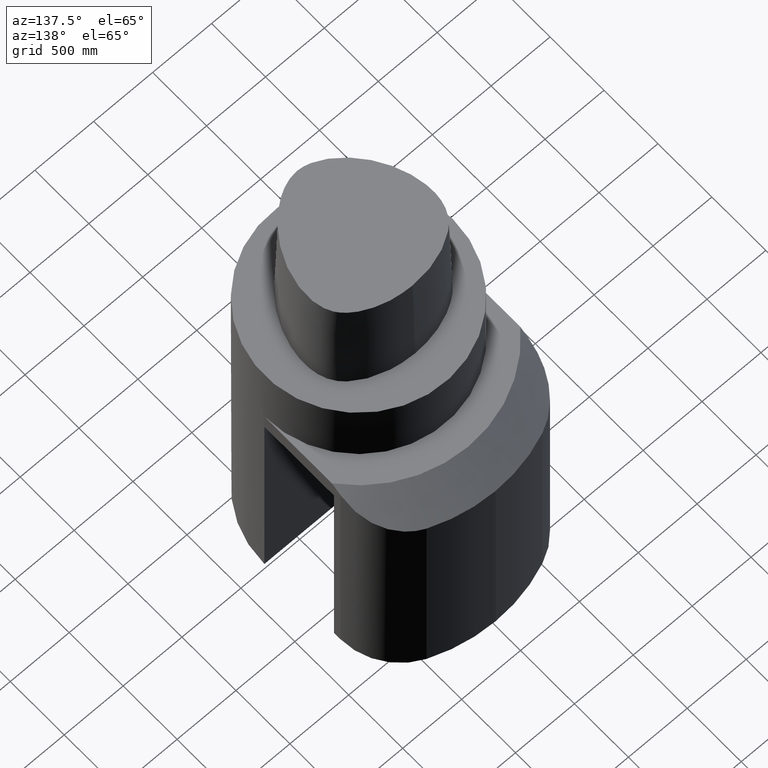
[diagram: clean part render]
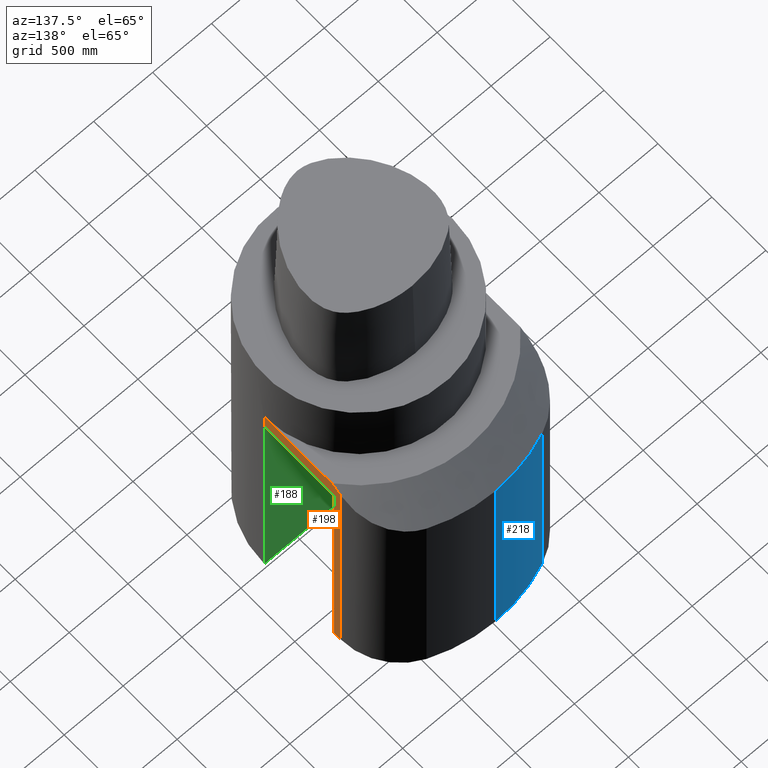
[diagram: same view with three faces highlighted in distinct colors, each labeled with its STEP entity id]
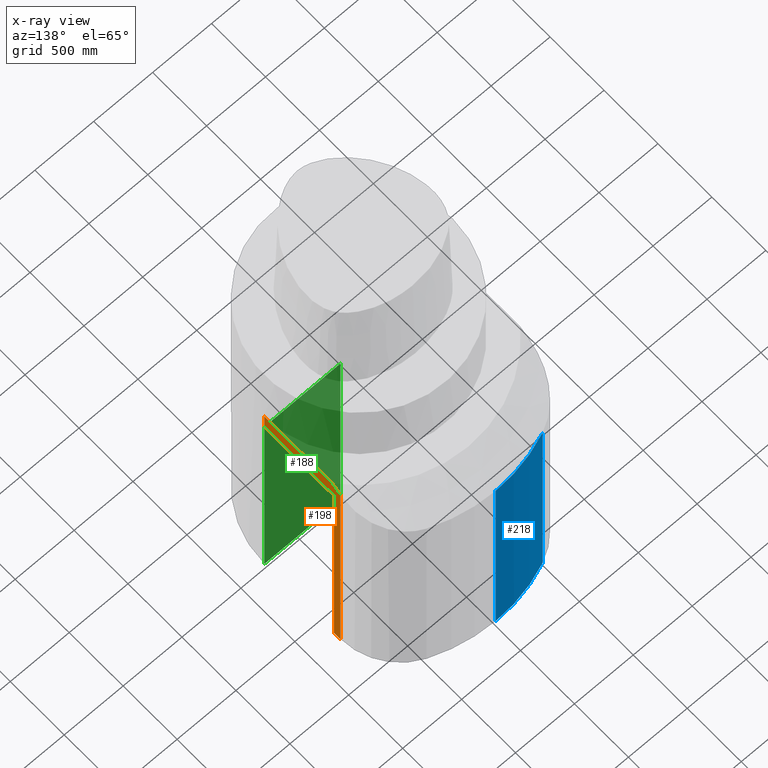
[diagram: x-ray of the same camera — body ghosted, the three highlighted faces saturated]
A machine part, auxiliary view with three faces highlighted in distinct colors.
The next image is the same camera in x-ray (body ghosted, the three faces saturated) — at least one of them is partly hidden behind the body in this view.
Their STEP definitions:

[orange] entity #198 — the highlighted planar face has unit normal (-1, 0, -0).
#125=EDGE_CURVE('Unnamed[1]',#309,#303,#310,.T.);
#170=EDGE_CURVE('Unnamed[1]',#309,#369,#370,.T.);
#176=EDGE_CURVE('Unnamed[1]',#369,#317,#376,.T.);
#198=ADVANCED_FACE('Unnamed[1]',(#404),#405,.F.);
#207=EDGE_CURVE('Unnamed[1]',#303,#398,#416,.T.);
#215=EDGE_CURVE('Unnamed[1]',#426,#407,#427,.T.);
#220=EDGE_CURVE('Unnamed[1]',#317,#407,#433,.T.);
#230=EDGE_CURVE('Unnamed[1]',#426,#398,#443,.T.);
#303=VERTEX_POINT('',#706);
#309=VERTEX_POINT('',#716);
#310=LINE('',#717,#718);
#317=VERTEX_POINT('',#727);
#369=VERTEX_POINT('',#835);
#370=LINE('',#836,#837);
#376=LINE('',#847,#848);
#398=VERTEX_POINT('',#895);
#404=FACE_OUTER_BOUND('',#904,.T.);
#405=PLANE('',#905);
#407=VERTEX_POINT('',#908);
#416=LINE('',#938,#939);
#426=VERTEX_POINT('',#952);
#427=LINE('',#953,#954);
#433=(B_SPLINE_CURVE(2,(#963,#964,#965),.UNSPECIFIED.,.F.,.F.)B_SPLINE_CURVE_WITH_KNOTS((3,3),(0.0,17.3552936339432),.UNSPECIFIED.)RATIONAL_B_SPLINE_CURVE((1.0,1.01264270198955,1.0))BOUNDED_CURVE()REPRESENTATION_ITEM('')GEOMETRIC_REPRESENTATION_ITEM()CURVE());
#443=LINE('',#995,#996);
#706=CARTESIAN_POINT('',(31.5000000000001,25.4,-29.9999999999993));
#716=CARTESIAN_POINT('',(31.5,-7.62342632469223E-015,-29.9999999999993));
#717=CARTESIAN_POINT('',(31.5,6.92752358954325,-29.9999999999993));
#718=VECTOR('',#1062,1.0);
#727=CARTESIAN_POINT('',(31.5000000000001,24.6525860712451,-24.0));
#835=CARTESIAN_POINT('',(31.5,6.20914671873299E-014,-24.0));
#836=CARTESIAN_POINT('',(31.5,4.98449991958564E-014,-224.0));
#837=VECTOR('',#1123,1.0);
#847=CARTESIAN_POINT('',(31.5,6.92752358954312,-24.0));
#848=VECTOR('',#1128,1.0);
#895=CARTESIAN_POINT('',(31.5000000000001,25.4,-109.999999999992));
#904=EDGE_LOOP('',(#1161,#1162,#1163,#1164,#1165,#1166,#1167));
#905=AXIS2_PLACEMENT_3D('',#1168,#1169,#1170);
#908=CARTESIAN_POINT('',(31.5000000000001,27.710094358173,-25.9535377452094));
#938=CARTESIAN_POINT('',(31.5000000000001,25.4,-224.0));
#939=VECTOR('',#1180,1.0);
#952=CARTESIAN_POINT('',(31.5000000000001,27.710094358173,-109.999999999992));
#953=CARTESIAN_POINT('',(31.5000000000001,27.710094358173,-224.0));
#954=VECTOR('',#1197,1.0);
#963=CARTESIAN_POINT('',(31.5000000000001,24.6525860712451,-24.0));
#964=CARTESIAN_POINT('',(31.5000000000001,30.9535507643402,-27.8833768607101));
#965=CARTESIAN_POINT('',(31.5000000000002,38.8297566307085,-33.9999999999993));
#995=CARTESIAN_POINT('',(31.5,6.92752358954314,-109.999999999992));
#996=VECTOR('',#1215,1.0);
#1062=DIRECTION('',(4.54284006420425E-015,1.0,-6.12323399573671E-017));
#1123=DIRECTION('',(-1.22464679914735E-016,6.12323399573677E-017,1.0));
#1128=DIRECTION('',(4.54284006420425E-015,1.0,-6.12323399573671E-017));
#1161=ORIENTED_EDGE('',*,*,#125,.T.);
#1162=ORIENTED_EDGE('',*,*,#207,.T.);
#1163=ORIENTED_EDGE('',*,*,#230,.F.);
#1164=ORIENTED_EDGE('',*,*,#215,.T.);
#1165=ORIENTED_EDGE('',*,*,#220,.F.);
#1166=ORIENTED_EDGE('',*,*,#176,.F.);
#1167=ORIENTED_EDGE('',*,*,#170,.F.);
#1168=CARTESIAN_POINT('',(31.5000000000001,13.8550471790865,-224.0));
#1169=DIRECTION('',(-1.0,4.54284006420425E-015,-1.22464679914736E-016));
#1170=DIRECTION('',(-4.54284006420425E-015,-1.0,6.12323399573671E-017));
#1180=DIRECTION('',(1.22464679914735E-016,-6.12323399573677E-017,-1.0));
#1197=DIRECTION('',(-1.22464679914735E-016,6.12323399573677E-017,1.0));
#1215=DIRECTION('',(-4.54284006420425E-015,-1.0,6.12323399508057E-017));

[blue] entity #218 — the highlighted cylindrical surface (partial cylindrical patch) has radius 1270 mm, axis along (-0, 0, 1).
#105=EDGE_CURVE('Unnamed[1]',#280,#281,#282,.T.);
#123=EDGE_CURVE('Unnamed[1]',#306,#281,#307,.T.);
#164=EDGE_CURVE('Unnamed[1]',#306,#337,#363,.T.);
#182=EDGE_CURVE('Unnamed[1]',#337,#280,#383,.T.);
#218=ADVANCED_FACE('Unnamed[1]',(#430),#431,.T.);
#280=VERTEX_POINT('',#593);
#281=VERTEX_POINT('',#594);
#282=B_SPLINE_CURVE_WITH_KNOTS('',3,(#595,#596,#597,#598,#599,#600,#601,#602,#603,#604,#605,#606,#607,#608),.UNSPECIFIED.,.F.,.F.,(4,2,2,2,2,2,4),(221.307613234184,226.016355747649,230.724780710334,235.433205673018,240.141630635702,244.850055598386,249.55848056107),.UNSPECIFIED.);
#306=VERTEX_POINT('',#711);
#307=LINE('',#712,#713);
#337=VERTEX_POINT('',#771);
#363=CIRCLE('',#824,50.0);
#383=LINE('',#875,#876);
#430=FACE_OUTER_BOUND('',#958,.T.);
#431=CYLINDRICAL_SURFACE('',#959,50.0);
#593=CARTESIAN_POINT('',(0.00215974507375456,49.9999999533556,-33.9999999999993));
#594=CARTESIAN_POINT('',(-19.169546318746,46.1775147707605,-33.9983437372701));
#595=CARTESIAN_POINT('',(4.77367907535413,49.7720123064386,-34.000412207767));
#596=CARTESIAN_POINT('',(3.16605859430777,49.9260611345788,-34.0002733272821));
#597=CARTESIAN_POINT('',(1.5695808261077,50.0001354088224,-34.000135408821));
#598=CARTESIAN_POINT('',(-1.56947497584813,49.9998642271643,-33.999864227163));
#599=CARTESIAN_POINT('',(-3.16583398429016,49.9255241333956,-33.9997263178512));
#600=CARTESIAN_POINT('',(-6.38081301651384,49.6169115926764,-33.9994485749278));
#601=CARTESIAN_POINT('',(-7.999434114848,49.382650340007,-33.9993087412234));
#602=CARTESIAN_POINT('',(-11.2281103078048,48.7497563817976,-33.9990298126658));
#603=CARTESIAN_POINT('',(-12.8383320599856,48.3511002719221,-33.998890703415));
#604=CARTESIAN_POINT('',(-16.0210177916453,47.3914671794928,-33.9986157457312));
#605=CARTESIAN_POINT('',(-17.5934830443396,46.8304944196466,-33.9984798971886));
#606=CARTESIAN_POINT('',(-20.6730336621863,45.5546367378679,-33.9982138473621));
#607=CARTESIAN_POINT('',(-22.1814966518667,44.8391810661556,-33.9980835270624));
#608=CARTESIAN_POINT('',(-23.6459115898771,44.0529972922431,-33.9979570117273));
#711=CARTESIAN_POINT('',(-19.169546318746,46.1775147707605,-110.000000000068));
#712=CARTESIAN_POINT('',(-19.169546318746,46.1775147707605,-224.0));
#713=VECTOR('',#1061,1.0);
#771=CARTESIAN_POINT('',(0.00215974638974273,49.9999999533557,-110.000000000114));
#824=AXIS2_PLACEMENT_3D('',#1118,#1119,#1120);
#875=CARTESIAN_POINT('',(0.00215974570544769,49.9999999533556,-224.0));
#876=VECTOR('',#1130,1.0);
#958=EDGE_LOOP('',(#1199,#1200,#1201,#1202));
#959=AXIS2_PLACEMENT_3D('',#1203,#1204,#1205);
#1061=DIRECTION('',(-1.22464679914735E-016,6.12323399573677E-017,1.0));
#1118=CARTESIAN_POINT('',(0.00431947811944913,7.85287774206389E-014,-110.000000000077));
#1119=DIRECTION('',(1.50533619611409E-012,-6.12323399576442E-017,-1.0));
#1120=DIRECTION('',(3.06161699786838E-016,1.0,-6.12323399571833E-017));
#1130=DIRECTION('',(-1.22464679914735E-016,6.12323399573677E-017,1.0));
#1199=ORIENTED_EDGE('',*,*,#164,.F.);
#1200=ORIENTED_EDGE('',*,*,#123,.T.);
#1201=ORIENTED_EDGE('',*,*,#105,.F.);
#1202=ORIENTED_EDGE('',*,*,#182,.F.);
#1203=CARTESIAN_POINT('',(0.00431947811946309,7.15482906655037E-014,-224.0));
#1204=DIRECTION('',(-1.22464679914735E-016,6.12323399573677E-017,1.0));
#1205=DIRECTION('',(3.06161699786838E-016,1.0,-6.12323399573677E-017));

[green] entity #188 — the highlighted planar face has unit normal (-0, -1, 0).
#134=EDGE_CURVE('Unnamed[1]',#323,#309,#324,.T.);
#138=EDGE_CURVE('Unnamed[1]',#329,#330,#331,.T.);
#168=EDGE_CURVE('Unnamed[1]',#329,#323,#367,.T.);
#188=ADVANCED_FACE('Unnamed[1]',(#391),#392,.F.);
#232=EDGE_CURVE('Unnamed[1]',#309,#330,#445,.T.);
#309=VERTEX_POINT('',#716);
#323=VERTEX_POINT('',#750);
#324=LINE('',#751,#752);
#329=VERTEX_POINT('',#760);
#330=VERTEX_POINT('',#761);
#331=LINE('',#762,#763);
#367=LINE('',#831,#832);
#391=FACE_OUTER_BOUND('',#886,.T.);
#392=PLANE('',#887);
#445=LINE('',#999,#1000);
#716=CARTESIAN_POINT('',(31.5,-7.62342632469223E-015,-29.9999999999993));
#750=CARTESIAN_POINT('',(31.5,5.68254859509968E-014,-109.999999999992));
#751=CARTESIAN_POINT('',(31.5,4.98449991958564E-014,-224.0));
#752=VECTOR('',#1074,1.0);
#760=CARTESIAN_POINT('',(6.10000000000847,2.05656002138704E-014,-110.00000000003));
#761=CARTESIAN_POINT('',(6.10000000000846,2.54641874104616E-014,-29.9999999999993));
#762=CARTESIAN_POINT('',(6.10000000000849,1.35851134587323E-014,-224.0));
#763=VECTOR('',#1076,1.0);
#831=CARTESIAN_POINT('',(-3.10000000008385,3.25500902283015E-014,-110.000000000044));
#832=VECTOR('',#1122,1.0);
#886=EDGE_LOOP('',(#1140,#1141,#1142,#1143));
#887=AXIS2_PLACEMENT_3D('',#1144,#1145,#1146);
#999=CARTESIAN_POINT('',(31.5,-7.62342632469223E-015,-29.9999999999993));
#1000=VECTOR('',#1216,1.0);
#1074=DIRECTION('',(-1.22464679914735E-016,6.12323399573677E-017,1.0));
#1076=DIRECTION('',(-1.22464679914735E-016,6.12323399573677E-017,1.0));
#1122=DIRECTION('',(1.0,-1.30266195807727E-015,1.50533619611409E-012));
#1140=ORIENTED_EDGE('',*,*,#168,.F.);
#1141=ORIENTED_EDGE('',*,*,#138,.T.);
#1142=ORIENTED_EDGE('',*,*,#232,.F.);
#1143=ORIENTED_EDGE('',*,*,#134,.F.);
#1144=CARTESIAN_POINT('',(18.8000000000043,-2.95869340884467E-015,-224.0));
#1145=DIRECTION('',(-1.30266195807736E-015,-1.0,6.12323399573675E-017));
#1146=DIRECTION('',(1.0,-1.30266195807736E-015,1.22464679914735E-016));
#1216=DIRECTION('',(-1.0,1.30266195807736E-015,-1.22464679914735E-016));